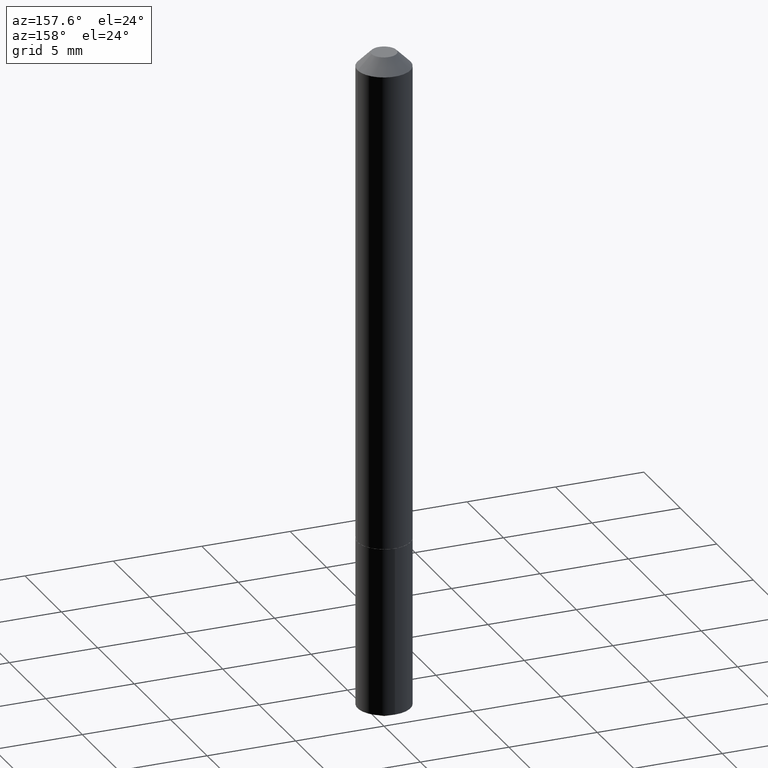
[diagram: clean part render]
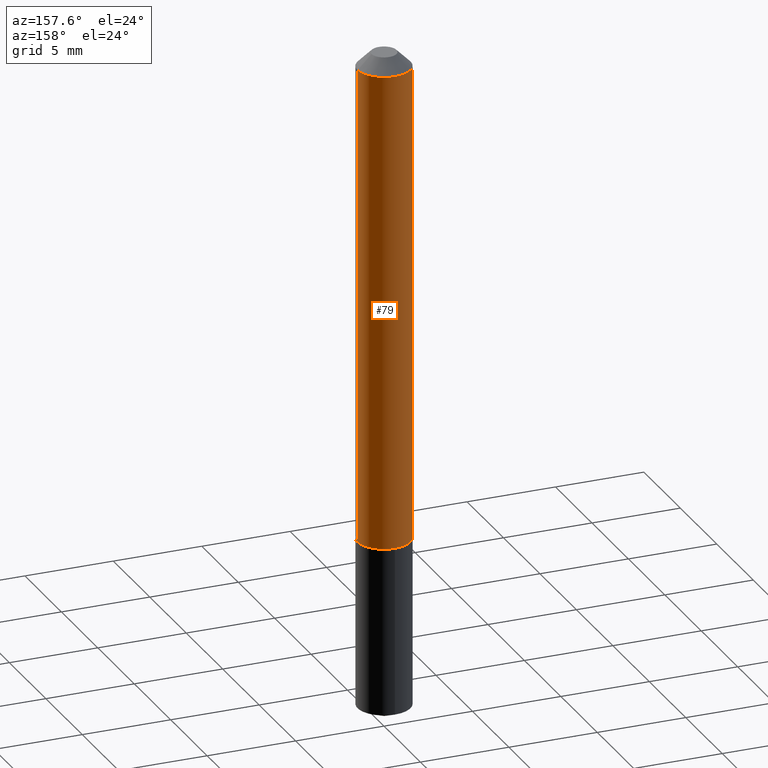
[diagram: same view with one face highlighted and labeled with its STEP entity id]
A machine part, auxiliary view. The second image highlights one B-rep face of the part: STEP entity #79.
In plain terms, the highlighted cylindrical surface (edge-blend (fillet) strip) has radius 1.4999 mm, axis along (-0, 0, 1).
Its self-contained STEP definition (entity closure, byte-faithful):
#2 = ORIENTED_EDGE ( 'NONE', *, *, #130, .F. ) ;
#10 = CARTESIAN_POINT ( 'NONE',  ( -0.05905000000000013710, -3.400105099228060593E-15, -1.093999999999999861 ) ) ;
#11 = EDGE_CURVE ( 'NONE', #165, #111, #387, .T. ) ;
#20 = EDGE_LOOP ( 'NONE', ( #43, #252, #374, #2 ) ) ;
#21 = CARTESIAN_POINT ( 'NONE',  ( 0.05905000000000013710, -4.232024530811775401E-15, -1.093999999999999861 ) ) ;
#43 = ORIENTED_EDGE ( 'NONE', *, *, #54, .T. ) ;
#53 = DIRECTION ( 'NONE',  ( 1.000000000000000000, -6.982962677686265922E-15, 0.000000000000000000 ) ) ;
#54 = EDGE_CURVE ( 'NONE', #384, #232, #102, .T. ) ;
#78 = AXIS2_PLACEMENT_3D ( 'NONE', #84, #383, #235 ) ;
#79 = ADVANCED_FACE ( 'NONE', ( #204 ), #93, .T. ) ;
#80 = DIRECTION ( 'NONE',  ( -2.445468806185136597E-29, 3.491481338843145583E-15, 1.000000000000000000 ) ) ;
#84 = CARTESIAN_POINT ( 'NONE',  ( 2.675342873966538993E-29, -3.819680584694400481E-15, -1.093999999999999861 ) ) ;
#93 = CYLINDRICAL_SURFACE ( 'NONE', #284, 0.05905000000000006771 ) ;
#98 = LINE ( 'NONE', #215, #301 ) ;
#102 = CIRCLE ( 'NONE', #78, 0.05905000000000013710 ) ;
#111 = VERTEX_POINT ( 'NONE', #257 ) ;
#116 = DIRECTION ( 'NONE',  ( -2.445468806185136877E-29, 3.491481338843145188E-15, 1.000000000000000000 ) ) ;
#130 = EDGE_CURVE ( 'NONE', #384, #165, #379, .T. ) ;
#131 = CARTESIAN_POINT ( 'NONE',  ( 0.05905000000000000526, -5.214527379562231333E-16, -0.03125000000000021511 ) ) ;
#165 = VERTEX_POINT ( 'NONE', #131 ) ;
#204 = FACE_OUTER_BOUND ( 'NONE', #20, .T. ) ;
#215 = CARTESIAN_POINT ( 'NONE',  ( -0.05905000000000006771, 4.195754854663396409E-16, -2.904631170795525045E-30 ) ) ;
#232 = VERTEX_POINT ( 'NONE', #10 ) ;
#235 = DIRECTION ( 'NONE',  ( 1.000000000000000000, -6.982962677686264344E-15, 0.000000000000000000 ) ) ;
#252 = ORIENTED_EDGE ( 'NONE', *, *, #299, .T. ) ;
#257 = CARTESIAN_POINT ( 'NONE',  ( -0.05905000000000000526, -1.544819202800284509E-15, -0.03125000000000021511 ) ) ;
#266 = CARTESIAN_POINT ( 'NONE',  ( 7.642090019328603538E-31, -1.091087918388490390E-16, -0.03125000000000021511 ) ) ;
#279 = VECTOR ( 'NONE', #116, 39.37007874015748143 ) ;
#284 = AXIS2_PLACEMENT_3D ( 'NONE', #322, #80, #292 ) ;
#292 = DIRECTION ( 'NONE',  ( 1.000000000000000000, -6.982962677686266711E-15, 4.876176775795936353E-29 ) ) ;
#299 = EDGE_CURVE ( 'NONE', #232, #111, #98, .T. ) ;
#301 = VECTOR ( 'NONE', #332, 39.37007874015748143 ) ;
#311 = AXIS2_PLACEMENT_3D ( 'NONE', #266, #359, #53 ) ;
#322 = CARTESIAN_POINT ( 'NONE',  ( 0.000000000000000000, 0.000000000000000000, 0.000000000000000000 ) ) ;
#332 = DIRECTION ( 'NONE',  ( -2.445468806185136877E-29, 3.491481338843145188E-15, 1.000000000000000000 ) ) ;
#359 = DIRECTION ( 'NONE',  ( -2.445468806185136597E-29, 3.491481338843145583E-15, 1.000000000000000000 ) ) ;
#374 = ORIENTED_EDGE ( 'NONE', *, *, #11, .F. ) ;
#379 = LINE ( 'NONE', #389, #279 ) ;
#383 = DIRECTION ( 'NONE',  ( -2.445468806185136597E-29, 3.491481338843145583E-15, 1.000000000000000000 ) ) ;
#384 = VERTEX_POINT ( 'NONE', #21 ) ;
#387 = CIRCLE ( 'NONE', #311, 0.05905000000000000526 ) ;
#389 = CARTESIAN_POINT ( 'NONE',  ( 0.05905000000000006771, -4.123439461173745257E-16, 2.879382386107503723E-30 ) ) ;